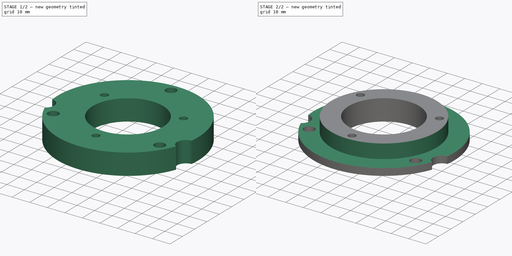
[diagram: build sequence overview — one tinted view per stage of 2, left to right]
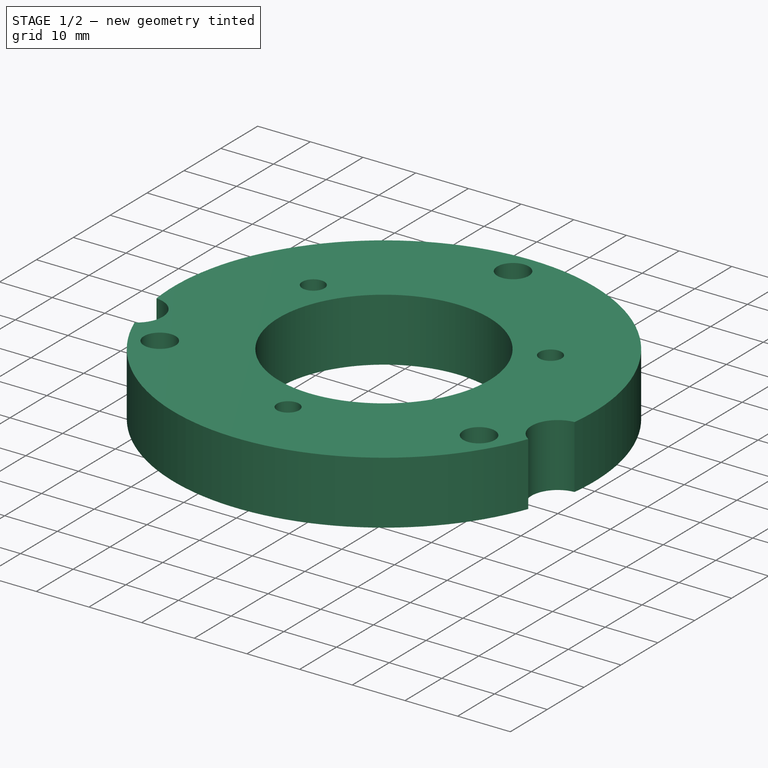
[diagram: stage 1 of 2 — iso view after this stage's code; geometry added in this stage tinted green]
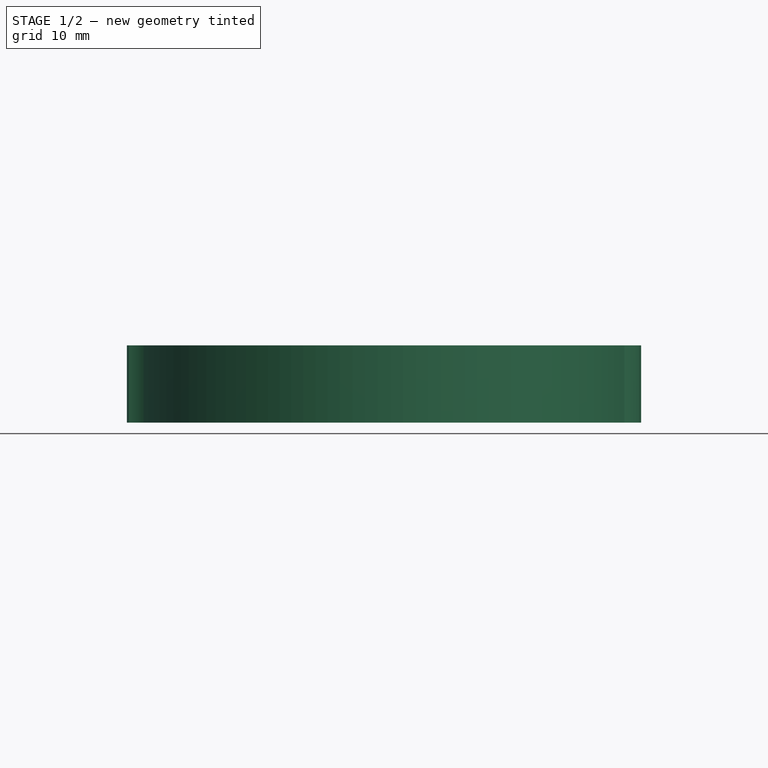
[diagram: stage 1 of 2 — front view after this stage's code; geometry added in this stage tinted green]
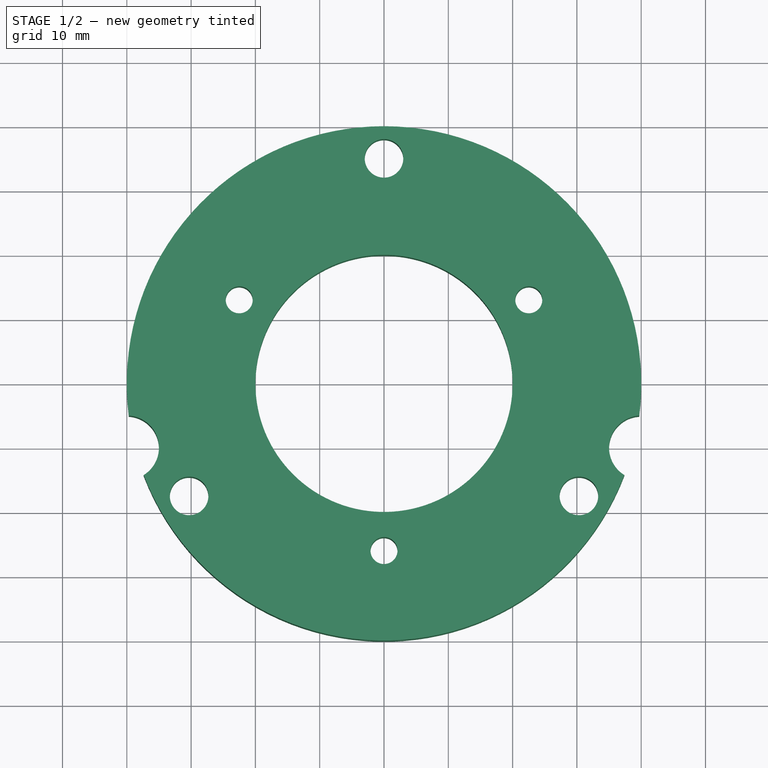
[diagram: stage 1 of 2 — top view after this stage's code; geometry added in this stage tinted green]
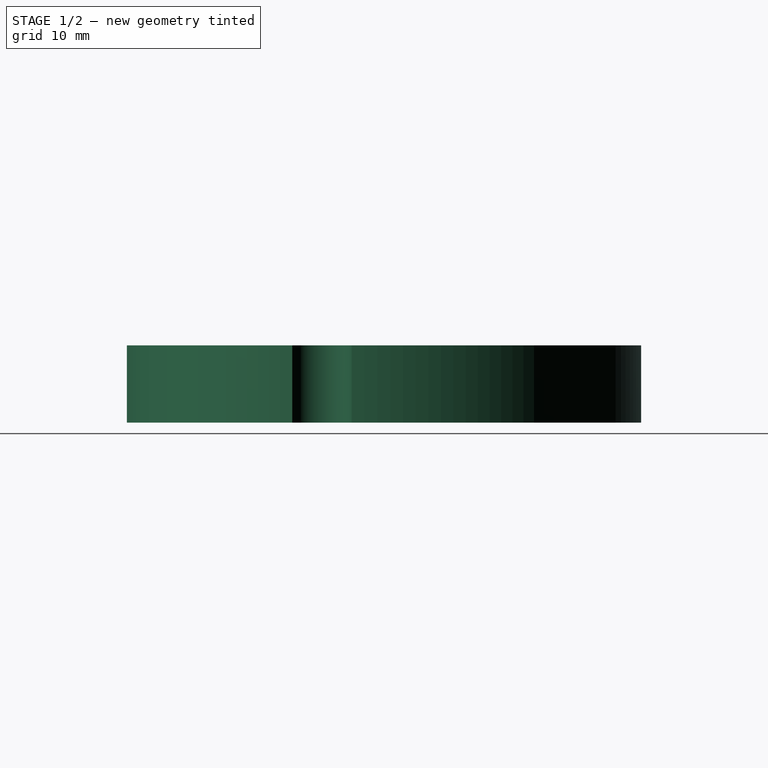
[diagram: stage 1 of 2 — right view after this stage's code; geometry added in this stage tinted green]
FCSTD DOCUMENT  (FreeCAD 0.20R29410 (Git))
Label: QRAdapter52 to70_CNC
License: All rights reserved
LicenseURL: http://en.wikipedia.org/wiki/All_rights_reserved
objects: Sketcher::SketchObject×2, PartDesign::Pad×1, PartDesign::Pocket×1, PartDesign::Body×1
note: 7 computed .brp shape members not serialized (recipe doc carries the construction recipe); baked Part::Feature solids carry a one-line shape summary decoded from their .brp

FEATURE [Sketcher::SketchObject] Sketch
  FullyConstrained = true
  MapMode = 5
  Support = -> [XY_Plane]
  sketch-geometry (25):
    g0: Circle CenterX=0 CenterY=0 CenterZ=0 NormalX=0 NormalY=0 NormalZ=1 AngleXU=0 Radius=26
    g1: Circle CenterX=0 CenterY=0 CenterZ=0 NormalX=0 NormalY=0 NormalZ=1 AngleXU=0 Radius=35
    g2: Circle CenterX=-40 CenterY=-10 CenterZ=0 NormalX=0 NormalY=0 NormalZ=1 AngleXU=0 Radius=4
    g3: Circle CenterX=40 CenterY=-10 CenterZ=0 NormalX=0 NormalY=0 NormalZ=1 AngleXU=0 Radius=4
    g4: LineSegment StartX=0 StartY=0 StartZ=0 EndX=0 EndY=35 EndZ=0
    g5: LineSegment StartX=0 StartY=0 StartZ=0 EndX=-30.3109 EndY=-17.5 EndZ=0
    g6: LineSegment StartX=0 StartY=0 StartZ=0 EndX=30.3109 EndY=-17.5 EndZ=0
    g7: Circle CenterX=0 CenterY=0 CenterZ=0 NormalX=0 NormalY=0 NormalZ=1 AngleXU=0 Radius=7.5
    g8: Circle CenterX=-40 CenterY=30 CenterZ=0 NormalX=0 NormalY=0 NormalZ=1 AngleXU=0 Radius=4
    g9: Circle CenterX=40 CenterY=30 CenterZ=0 NormalX=0 NormalY=0 NormalZ=1 AngleXU=0 Radius=4
    g10: ArcOfCircle CenterX=0 CenterY=0 CenterZ=0 NormalX=0 NormalY=0 NormalZ=1 AngleXU=0 Radius=40 StartAngle=3.50597 EndAngle=5.91881
    g11: Circle CenterX=0 CenterY=35 CenterZ=0 NormalX=0 NormalY=0 NormalZ=1 AngleXU=0 Radius=3
    g12: Circle CenterX=-30.3109 CenterY=-17.5 CenterZ=0 NormalX=0 NormalY=0 NormalZ=1 AngleXU=0 Radius=3
    g13: Circle CenterX=30.3109 CenterY=-17.5 CenterZ=0 NormalX=0 NormalY=0 NormalZ=1 AngleXU=0 Radius=3
    g14: LineSegment StartX=0 StartY=0 StartZ=0 EndX=-22.5167 EndY=13 EndZ=0
    g15: LineSegment StartX=0 StartY=0 StartZ=0 EndX=22.5167 EndY=13 EndZ=0
    g16: LineSegment StartX=0 StartY=0 StartZ=0 EndX=0 EndY=-26 EndZ=0
    g17: Circle CenterX=-22.5167 CenterY=13 CenterZ=0 NormalX=0 NormalY=0 NormalZ=1 AngleXU=0 Radius=2.1
    g18: Circle CenterX=22.5167 CenterY=13 CenterZ=0 NormalX=0 NormalY=0 NormalZ=1 AngleXU=0 Radius=2.1
    g19: Circle CenterX=0 CenterY=-26 CenterZ=0 NormalX=0 NormalY=0 NormalZ=1 AngleXU=0 Radius=2.1
    g20: Circle CenterX=0 CenterY=0 CenterZ=0 NormalX=0 NormalY=0 NormalZ=1 AngleXU=0 Radius=20
    g21: ArcOfCircle CenterX=-40 CenterY=-10 CenterZ=0 NormalX=0 NormalY=0 NormalZ=1 AngleXU=0 Radius=5 StartAngle=5.26538 EndAngle=7.79094
    g22: ArcOfCircle CenterX=40 CenterY=-10 CenterZ=0 NormalX=0 NormalY=0 NormalZ=1 AngleXU=0 Radius=5 StartAngle=1.63383 EndAngle=4.15939
    g23: ArcOfCircle CenterX=0 CenterY=0 CenterZ=0 NormalX=0 NormalY=0 NormalZ=1 AngleXU=0 Radius=40 StartAngle=6.15761 EndAngle=9.55036
    g24: Circle CenterX=-30.3109 CenterY=-17.5 CenterZ=0 NormalX=0 NormalY=0 NormalZ=1 AngleXU=0 Radius=5
  constraints (64):
    c: Coincident(g0,g-1)
    c: Diameter(g0) = 52  'Fanatec QR'
    c: Coincident(g1,g0)
    c: Diameter(g1) = 70  'Standard QR'
    c: Diameter(g2) = 8  'Screw space for housing'
    c: Equal(g2,g3)
    c: Coincident(g4,g0)
    c: PointOnObject(g4,g1)
    c: Vertical(g4)
    c: Coincident(g5,g0)
    c: PointOnObject(g5,g1)
    c: Coincident(g6,g0)
    c: PointOnObject(g6,g1)
    c: Angle(g4,g5) = 2.0944
    c: Angle(g5,g6) = 2.0944
    c: Coincident(g7,g0)
    c: Diameter(g7) = 15  'Housing hole'
    c: DistanceY(g2,g0) = 10
    c: Equal(g2,g8)
    c: Equal(g8,g9)
    c: DistanceX(g8,g9) = 80
    c: DistanceY(g3,g9) = 40
    c: DistanceX(g8,g0) = 40
    c: DistanceY(g2,g8) = 40
    c: Distance(g2,g3) = 80
    c: DistanceX(g2,g0) = 40
    c: DistanceY(g3,g0) = 10
    c: Coincident(g10,g0)
    c: Diameter(g10) = 80  'Outter circle'
    c: Coincident(g11,g4)
    c: Diameter(g11) = 6  'M5 pass through hole'
    c: Coincident(g12,g5)
    c: Coincident(g13,g6)
    c: Equal(g11,g12)
    c: Equal(g12,g13)
    c: Coincident(g14,g10)
    c: PointOnObject(g14,g0)
    c: Angle(g6,g14) = 3.14159
    c: Coincident(g15,g10)
    c: PointOnObject(g15,g0)
    c: Angle(g15,g5) = 3.14159
    c: Coincident(g16,g10)
    c: PointOnObject(g16,g0)
    c: Vertical(g16)
    c: Coincident(g17,g14)
    c: Coincident(g18,g15)
    c: Coincident(g19,g16)
    c: Diameter(g17) = 4.2  'M5 threading hole'
    c: Equal(g17,g18)
    c: Equal(g18,g19)
    c: Coincident(g20,g10)
    c: Diameter(g20) = 40  'Inner circle'
    c: Coincident(g21,g2)
    c: Diameter(g21) = 10
    c: Coincident(g22,g3)
    c: Diameter(g22) = 10  'Free space arround housing holes'
    c: Coincident(g23,g21)
    c: Coincident(g10,g21)
    c: Equal(g10,g23)
    c: Coincident(g10,g23)
    c: Coincident(g22,g23)
    c: Coincident(g10,g22)
    c: Coincident(g24,g12)
    c: Diameter(g24) = 10  'Space for screw head'
FEATURE [PartDesign::Pad] Pad
  Direction = (0,0,1)
  Length = 12
  Length2 = 10
  Profile = -> Sketch
  ReferenceAxis = -> Sketch [N_Axis]
  Type = 0
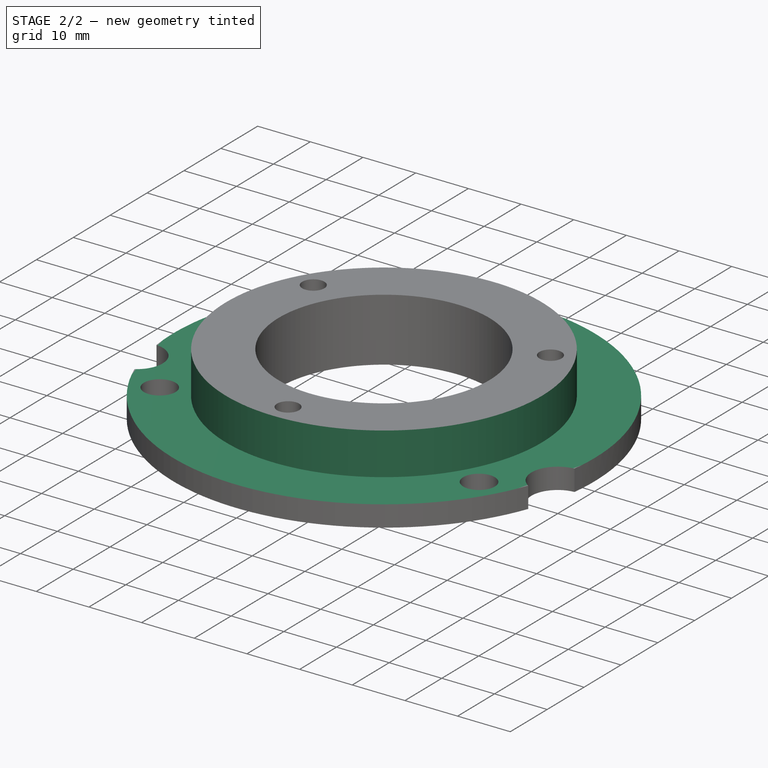
[diagram: stage 2 of 2 — iso view after this stage's code; geometry added in this stage tinted green]
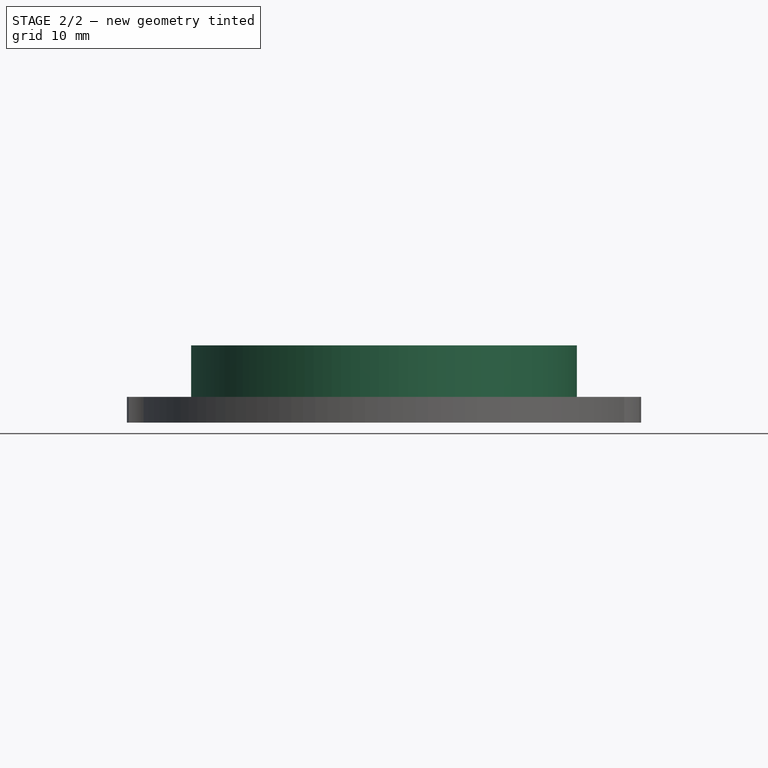
[diagram: stage 2 of 2 — front view after this stage's code; geometry added in this stage tinted green]
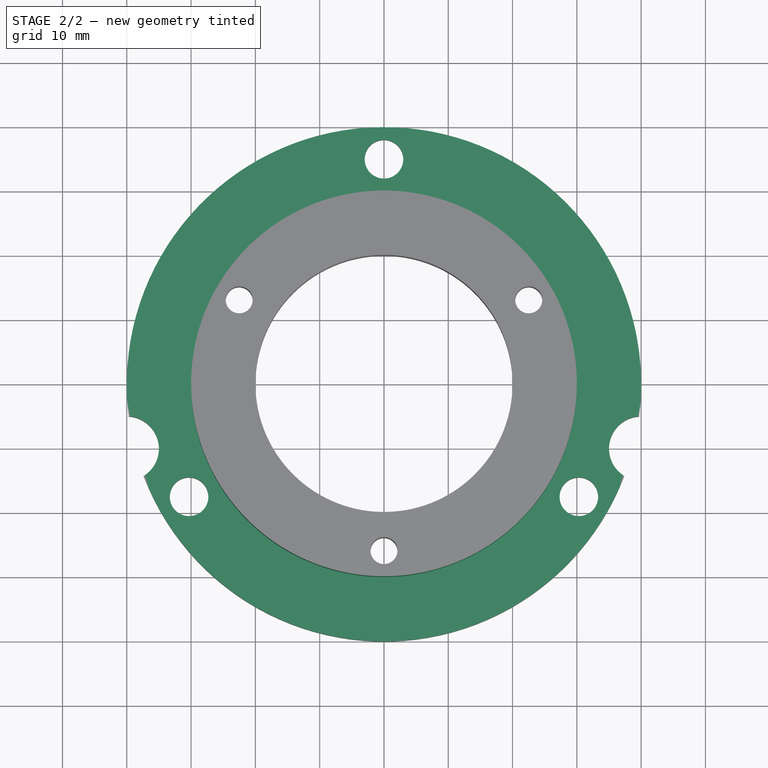
[diagram: stage 2 of 2 — top view after this stage's code; geometry added in this stage tinted green]
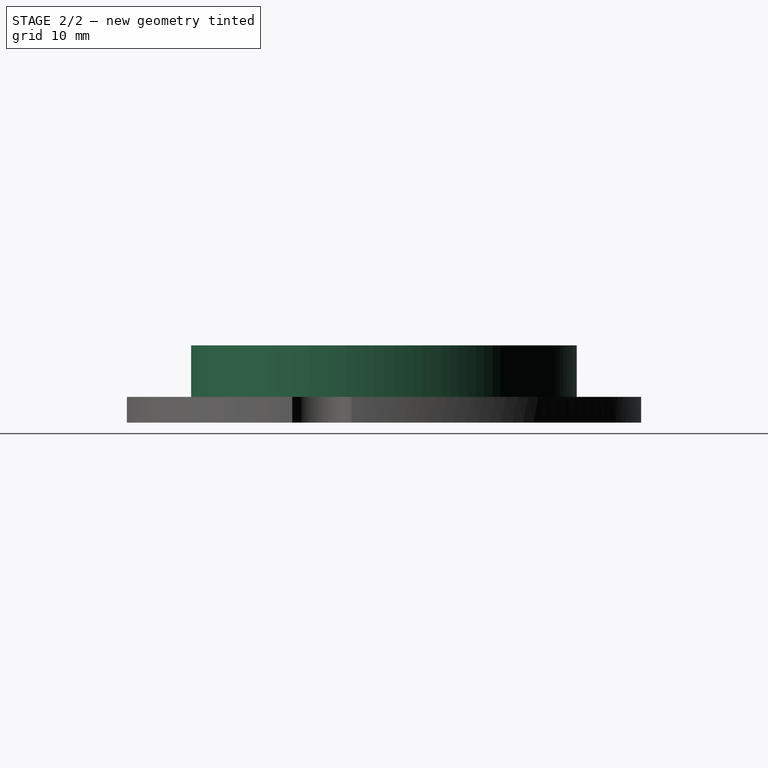
[diagram: stage 2 of 2 — right view after this stage's code; geometry added in this stage tinted green]
FEATURE [Sketcher::SketchObject] Sketch001
  ExternalGeometry = -> [Pad]
  FullyConstrained = true
  MapMode = 5
  Placement = pos=(0,0,12) rot=(0,0,1;0rad)
  Support = -> [Pad]
  sketch-geometry (3):
    g0: Circle CenterX=0 CenterY=0 CenterZ=0 NormalX=0 NormalY=0 NormalZ=1 AngleXU=0 Radius=30
    g1: Circle CenterX=-30.3109 CenterY=-17.5 CenterZ=0 NormalX=0 NormalY=0 NormalZ=1 AngleXU=0 Radius=5
    g2: Circle CenterX=0 CenterY=0 CenterZ=0 NormalX=0 NormalY=0 NormalZ=1 AngleXU=0 Radius=40
  constraints (6):
    c: Coincident(g0,g-3)
    c: Diameter(g0) = 60  'Outter ring'
    c: Coincident(g1,g-4)
    c: Diameter(g1) = 10  'Space for screw head'
    c: Coincident(g2,g0)
    c: Equal(g-5,g2)
FEATURE [PartDesign::Pocket] Pocket
  BaseFeature = -> Pad
  Direction = (0,0,-1)
  Length = 8
  Length2 = 5
  Profile = -> Sketch001
  ReferenceAxis = -> Sketch001 [N_Axis]
  Type = 0
FEATURE [PartDesign::Body] Body
  Group = -> [Sketch,Pad,Sketch001,Pocket]
  Origin = -> Origin
  Tip = -> Pocket
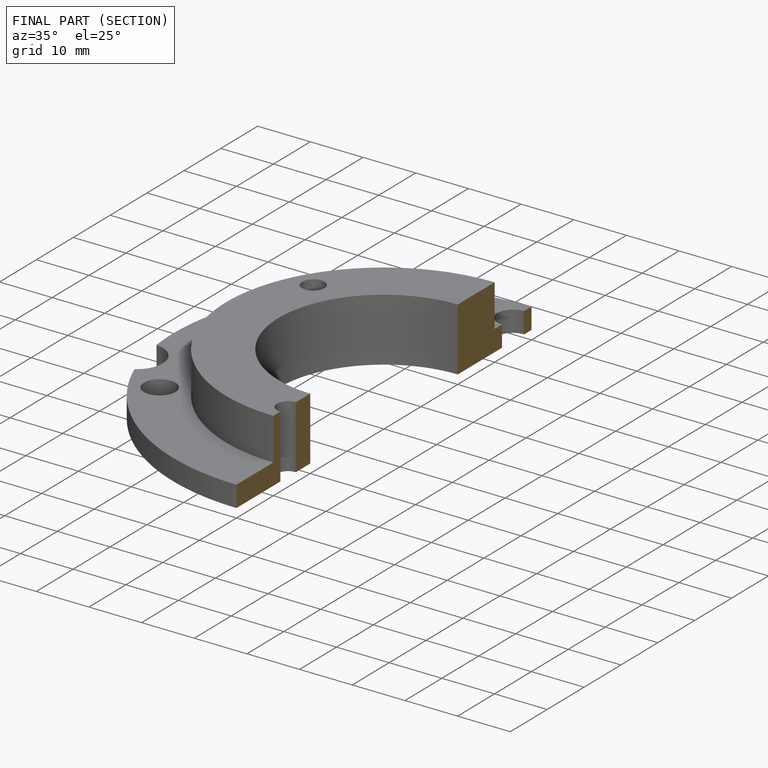
[diagram: finished part — half-section view (interior)]
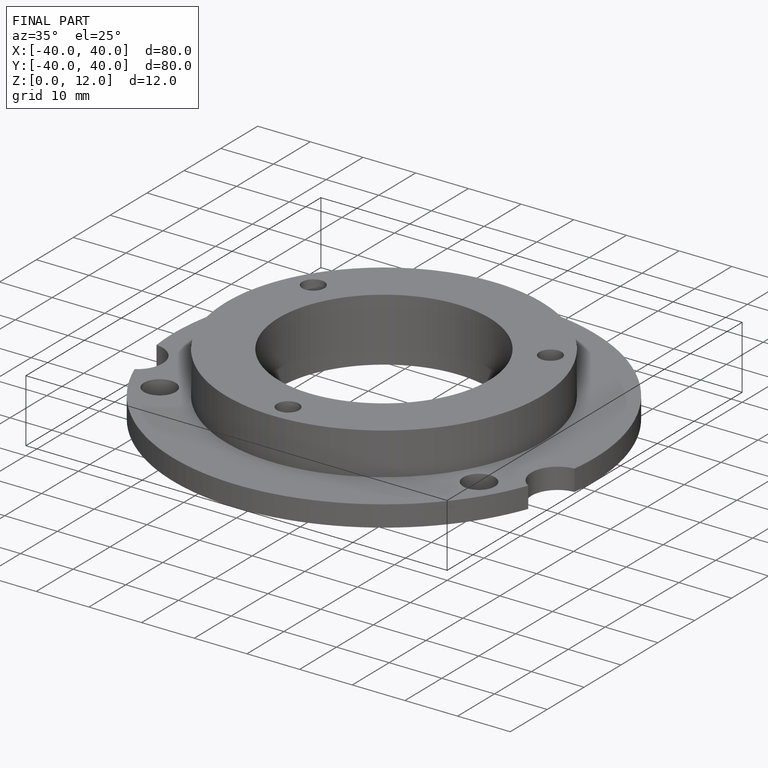
[diagram: finished part — iso view with bounding-box wireframe]
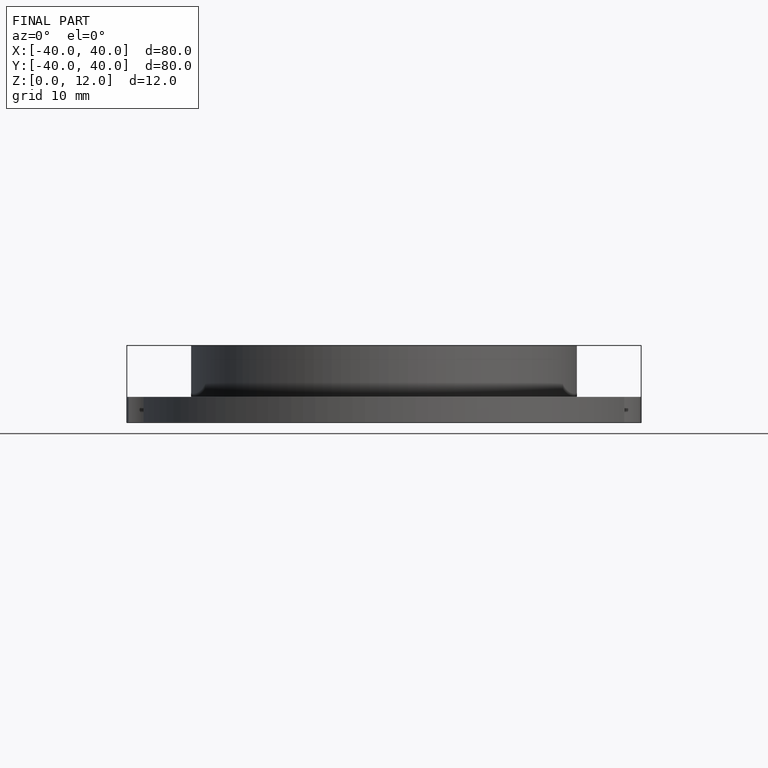
[diagram: finished part — front view with bounding-box wireframe]
